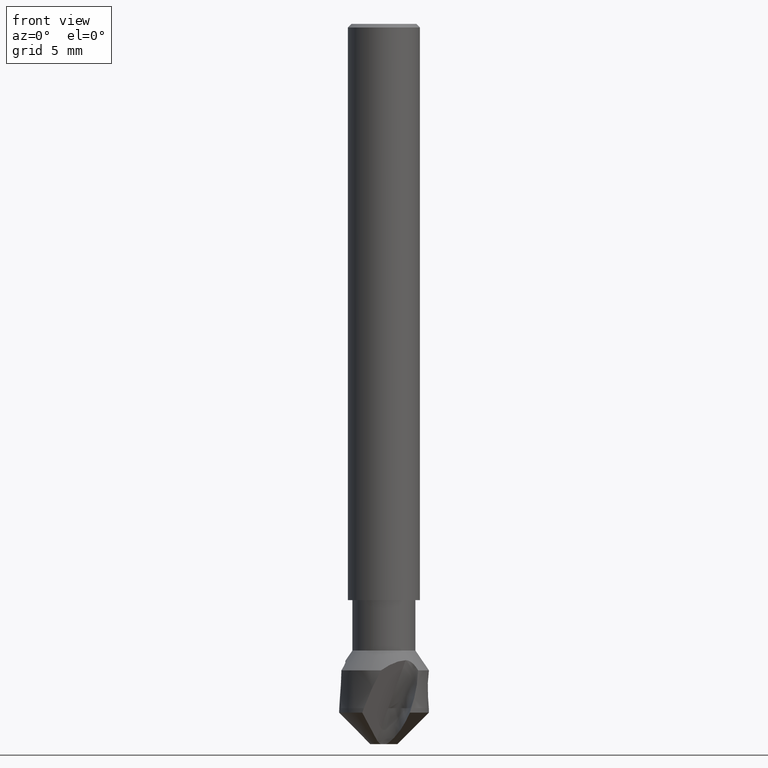
[diagram: clean part render]
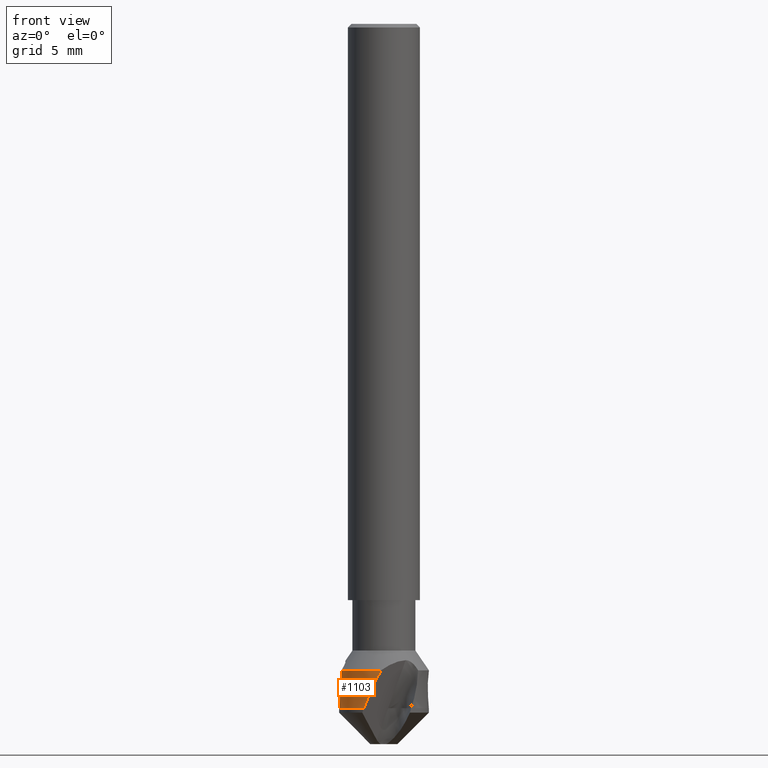
[diagram: same view with one face highlighted and labeled with its STEP entity id]
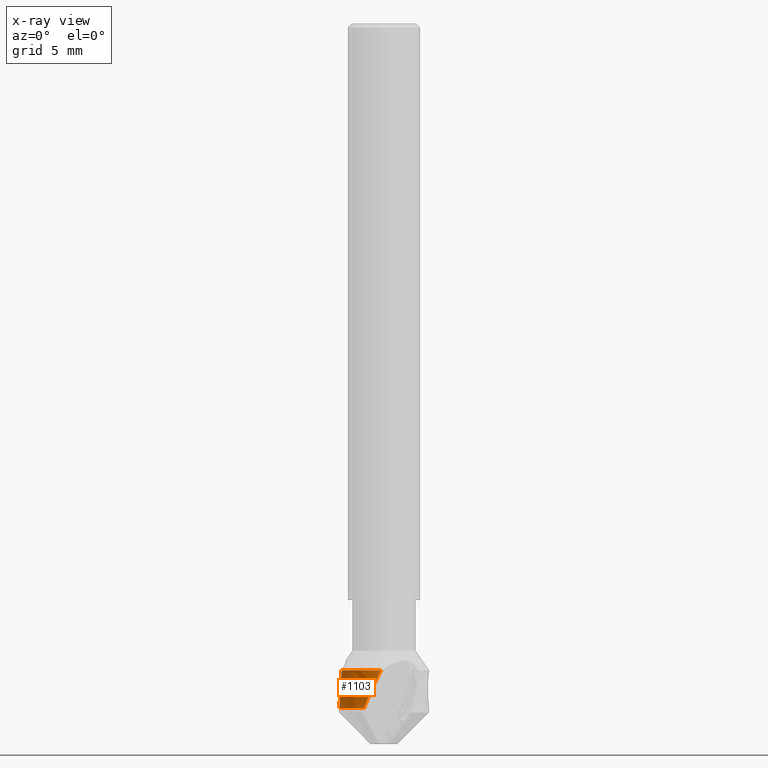
[diagram: x-ray of the same camera — body ghosted, the highlighted face saturated]
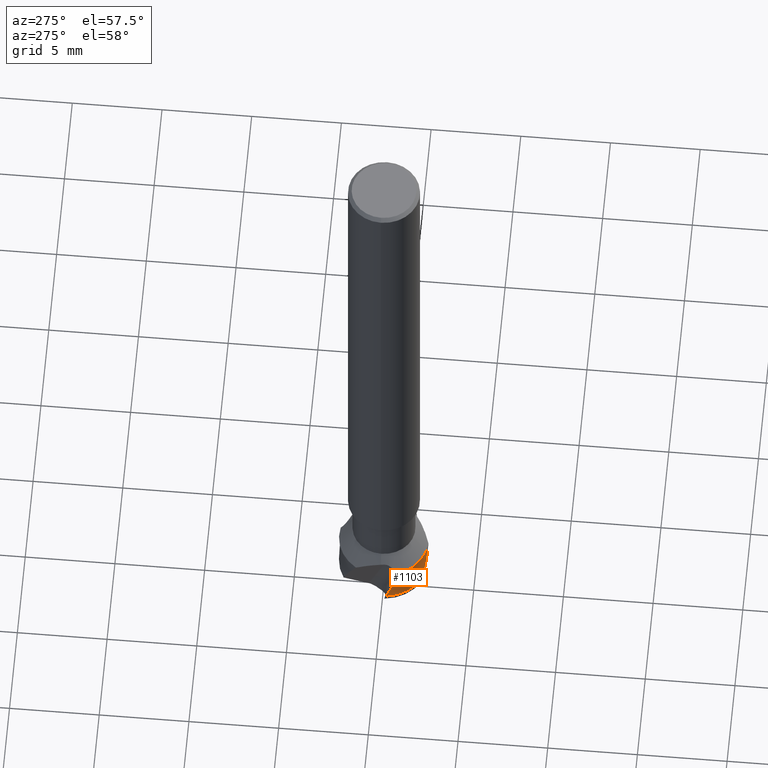
[diagram: same view with one face highlighted and labeled with its STEP entity id]
A machine part, front view. The second image highlights one B-rep face of the part: STEP entity #1103.
The next image is the same camera in x-ray: the body ghosted, the highlighted face saturated — about 0% of this face is hidden behind the body in this view.
A second angle (auxiliary view) of the same face is appended — the face is thin or edge-on in the first view.
In plain terms, the highlighted face is a freeform B-spline surface patch.
Its self-contained STEP definition (entity closure, byte-faithful):
#229 = VERTEX_POINT('', #230);
#230 = CARTESIAN_POINT('', (-0.158107779370651, -2.49499537676976, -35.9));
#456 = VERTEX_POINT('', #457);
#457 = CARTESIAN_POINT('', (-2.35924194956176, -0.827029276040468, -35.9));
#506 = EDGE_CURVE('', #229, #456, #507, .T.);
#507 = CIRCLE('', #508, 2.5);
#508 = AXIS2_PLACEMENT_3D('', #509, #510, #511);
#509 = CARTESIAN_POINT('', (1.34603440493902E-31, 2.1982410044695E-15, -35.9));
#510 = DIRECTION('', (3.74939945665464E-33, 6.12323399573677E-17, -1.));
#511 = DIRECTION('', (-1., 6.12323399573677E-17, 0.));
#538 = VERTEX_POINT('', #539);
#539 = CARTESIAN_POINT('', (-1.11021511575498, -2.23996035606643, -38.));
#552 = EDGE_CURVE('', #538, #229, #553, .T.);
#553 = B_SPLINE_CURVE_WITH_KNOTS('', 3, (#554, #555, #556, #557, #558, #559, #560, #561, #562, #563, #564, #565, #566, #567, #568, #569, #570, #571, #572, #573, #574, #575), .UNSPECIFIED., .F., .U., (4, 3, 3, 3, 3, 3, 3, 4), (0.270055093325694, 0.443228902501678, 0.886410396550348, 1.32953249733256, 1.77257781914671, 2.06795702549635, 2.36329243469526, 2.59401512353475), .UNSPECIFIED.);
#554 = CARTESIAN_POINT('', (-1.11021511575498, -2.23996035606643, -38.));
#555 = CARTESIAN_POINT('', (-1.09048168719979, -2.24974104285774, -37.9466421537014));
#556 = CARTESIAN_POINT('', (-1.070503293399, -2.25931838093744, -37.8933324100233));
#557 = CARTESIAN_POINT('', (-1.05027564706398, -2.26868267176905, -37.8400850422081));
#558 = CARTESIAN_POINT('', (-0.998509629058726, -2.2926474989055, -37.7038158908002));
#559 = CARTESIAN_POINT('', (-0.945096728274762, -2.31522815021579, -37.5679074901998));
#560 = CARTESIAN_POINT('', (-0.889896115676399, -2.33625446030693, -37.4325040122608));
#561 = CARTESIAN_POINT('', (-0.834702900825316, -2.35727795254297, -37.2971186805102));
#562 = CARTESIAN_POINT('', (-0.77770828177923, -2.37675451516065, -37.1621998806461));
#563 = CARTESIAN_POINT('', (-0.718727200094714, -2.39445843811163, -37.0279416616794));
#564 = CARTESIAN_POINT('', (-0.65975633795596, -2.41215929353579, -36.8937067053925));
#565 = CARTESIAN_POINT('', (-0.598780304345773, -2.42809639226234, -36.7600825955327));
#566 = CARTESIAN_POINT('', (-0.535553226952343, -2.44196288692128, -36.6273423854845));
#567 = CARTESIAN_POINT('', (-0.493399607399821, -2.45120770677501, -36.5388442207049));
#568 = CARTESIAN_POINT('', (-0.450233630821674, -2.45953303246481, -36.4507179437949));
#569 = CARTESIAN_POINT('', (-0.405961991090376, -2.46681877360092, -36.3630751494735));
#570 = CARTESIAN_POINT('', (-0.361696915706321, -2.47410343444872, -36.2754453503278));
#571 = CARTESIAN_POINT('', (-0.316315105392688, -2.48035141552591, -36.1882747468131));
#572 = CARTESIAN_POINT('', (-0.26970174900039, -2.48540961746472, -36.1017123157027));
#573 = CARTESIAN_POINT('', (-0.233286342693922, -2.48936119900782, -36.0340877903793));
#574 = CARTESIAN_POINT('', (-0.196110429460743, -2.49258715001636, -35.9668189514165));
#575 = CARTESIAN_POINT('', (-0.158107779370652, -2.49499537676976, -35.9));
#859 = VERTEX_POINT('', #860);
#860 = CARTESIAN_POINT('', (-2.44306244790569, -0.530514727065184, -37.4382753769953));
#866 = EDGE_CURVE('', #859, #456, #867, .T.);
#867 = B_SPLINE_CURVE_WITH_KNOTS('', 3, (#868, #869, #870, #871, #872, #873, #874, #875, #876, #877, #878, #879, #880, #881, #882, #883, #884, #885, #886, #887, #888, #889), .UNSPECIFIED., .F., .U., (4, 3, 3, 3, 3, 3, 3, 4), (0., 0.19735862069025, 0.394624059471122, 0.591818313204762, 0.788956412704216, 1.08462306640821, 1.38016200015431, 1.5752960687911), .UNSPECIFIED.);
#868 = CARTESIAN_POINT('', (-2.44306244790569, -0.530514727065184, -37.4382753769953));
#869 = CARTESIAN_POINT('', (-2.43808100743072, -0.553454656043611, -37.3768199465833));
#870 = CARTESIAN_POINT('', (-2.43309010288603, -0.574888602710528, -37.3147850284605));
#871 = CARTESIAN_POINT('', (-2.42818818674732, -0.59489673872088, -37.2523072665814));
#872 = CARTESIAN_POINT('', (-2.42328858502439, -0.614895427987482, -37.1898590032726));
#873 = CARTESIAN_POINT('', (-2.41847509717152, -0.633480092087889, -37.1269354781487));
#874 = CARTESIAN_POINT('', (-2.41382749519604, -0.650720234383124, -37.0636510681472));
#875 = CARTESIAN_POINT('', (-2.40918157035045, -0.667954155414506, -37.000389494907));
#876 = CARTESIAN_POINT('', (-2.40469908118394, -0.683852473737072, -36.9367381373847));
#877 = CARTESIAN_POINT('', (-2.40044467740514, -0.698473586270323, -36.8727948623873));
#878 = CARTESIAN_POINT('', (-2.39619148513621, -0.713090535206706, -36.8088697962655));
#879 = CARTESIAN_POINT('', (-2.39216431696559, -0.726437118807537, -36.7446264948213));
#880 = CARTESIAN_POINT('', (-2.38841572771891, -0.738559619519602, -36.6801505149954));
#881 = CARTESIAN_POINT('', (-2.38279361387338, -0.756740880418238, -36.5834497897282));
#882 = CARTESIAN_POINT('', (-2.37779572576115, -0.772184792821792, -36.4861586254687));
#883 = CARTESIAN_POINT('', (-2.37356123558522, -0.784988573755803, -36.3885301000988));
#884 = CARTESIAN_POINT('', (-2.36932857459394, -0.797786823804469, -36.2909437475981));
#885 = CARTESIAN_POINT('', (-2.36585413956379, -0.807959192075035, -36.1929410929838));
#886 = CARTESIAN_POINT('', (-2.36324723440338, -0.815513647393331, -36.0947527990375));
#887 = CARTESIAN_POINT('', (-2.36152598568649, -0.820501591228374, -36.0299224870127));
#888 = CARTESIAN_POINT('', (-2.3601815266768, -0.824348972200127, -35.9649826500248));
#889 = CARTESIAN_POINT('', (-2.35924194956176, -0.827029276040468, -35.9));
#1103 = ADVANCED_FACE('', (#1104), #1125, .T.);
#1104 = FACE_OUTER_BOUND('', #1105, .T.);
#1105 = EDGE_LOOP('', (#1106, #1115, #1116, #1117, #1118));
#1106 = ORIENTED_EDGE('', *, *, #1107, .F.);
#1107 = EDGE_CURVE('', #538, #1108, #1110, .T.);
#1108 = VERTEX_POINT('', #1109);
#1109 = CARTESIAN_POINT('', (-2.47887608394516, -0.32430442557062, -38.));
#1110 = CIRCLE('', #1111, 2.5);
#1111 = AXIS2_PLACEMENT_3D('', #1112, #1113, #1114);
#1112 = CARTESIAN_POINT('', (1.42477179352876E-31, 2.32682891837997E-15, -38.));
#1113 = DIRECTION('', (3.74939945665464E-33, 6.12323399573677E-17, -1.));
#1114 = DIRECTION('', (-1., 6.12323399573677E-17, 0.));
#1115 = ORIENTED_EDGE('', *, *, #552, .T.);
#1116 = ORIENTED_EDGE('', *, *, #506, .T.);
#1117 = ORIENTED_EDGE('', *, *, #866, .F.);
#1118 = ORIENTED_EDGE('', *, *, #1119, .T.);
#1119 = EDGE_CURVE('', #859, #1108, #1120, .T.);
#1120 = B_SPLINE_CURVE_WITH_KNOTS('', 3, (#1121, #1122, #1123, #1124), .UNSPECIFIED., .F., .U., (4, 4), (0., 0.599441301462325), .UNSPECIFIED.);
#1121 = CARTESIAN_POINT('', (-2.44306244790569, -0.530514727065184, -37.4382753769953));
#1122 = CARTESIAN_POINT('', (-2.45819267708459, -0.460838820159329, -37.6249351897728));
#1123 = CARTESIAN_POINT('', (-2.4700039617061, -0.392120002226918, -37.8122558268439));
#1124 = CARTESIAN_POINT('', (-2.47887608394516, -0.32430442557062, -38.));
#1125 = (
   BOUNDED_SURFACE ()
   B_SPLINE_SURFACE (2, 1, ((#1126, #1127), (#1128, #1129), (#1130, #1131), (#1132, #1133), (#1134, #1135), (#1136, #1137), (#1138, #1139), (#1140, #1141), (#1142, #1143)), .UNSPECIFIED., .F., .F., .U.)
   B_SPLINE_SURFACE_WITH_KNOTS ((3, 2, 2, 2, 3), (2, 2), (1.49143637316663, 3.92699081698724, 7.85398163397448, 11.7809724509617, 15.3557267720066), (0., 0.893617021276596), .UNSPECIFIED.)
   GEOMETRIC_REPRESENTATION_ITEM ()
   RATIONAL_B_SPLINE_SURFACE (((0.862018102276774, 0.862018102276774), (0.818345034686557, 0.818345034686557), (1., 1.), (0.707106781186548, 0.707106781186548), (1., 1.), (0.707106781186548, 0.707106781186548), (1., 1.), (0.733378215444515, 0.733378215444515), (0.952170031705974, 0.952170031705974)))
   REPRESENTATION_ITEM ('')
   SURFACE ()
);
#1126 = CARTESIAN_POINT('', (-2.08167548892202, 1.3844230418558, -35.9));
#1127 = CARTESIAN_POINT('', (-2.08167548892202, 1.3844230418558, -38.));
#1128 = CARTESIAN_POINT('', (-1.33975848310763, 2.5, -35.9));
#1129 = CARTESIAN_POINT('', (-1.33975848310763, 2.5, -38.));
#1130 = CARTESIAN_POINT('', (1.23259516440783E-31, 2.5, -35.9));
#1131 = CARTESIAN_POINT('', (1.4791141972894E-31, 2.5, -38.));
#1132 = CARTESIAN_POINT('', (2.5, 2.5, -35.9));
#1133 = CARTESIAN_POINT('', (2.5, 2.5, -38.));
#1134 = CARTESIAN_POINT('', (2.5, 2.35132185436292E-15, -35.9));
#1135 = CARTESIAN_POINT('', (2.5, 2.47990976827339E-15, -38.));
#1136 = CARTESIAN_POINT('', (2.5, -2.5, -35.9));
#1137 = CARTESIAN_POINT('', (2.5, -2.5, -38.));
#1138 = CARTESIAN_POINT('', (3.06161699786838E-16, -2.5, -35.9));
#1139 = CARTESIAN_POINT('', (3.06161699786838E-16, -2.5, -38.));
#1140 = CARTESIAN_POINT('', (-2.19423591655167, -2.5, -35.9));
#1141 = CARTESIAN_POINT('', (-2.19423591655167, -2.5, -38.));
#1142 = CARTESIAN_POINT('', (-2.47887608394516, -0.32430442557062, -35.9));
#1143 = CARTESIAN_POINT('', (-2.47887608394516, -0.32430442557062, -38.));